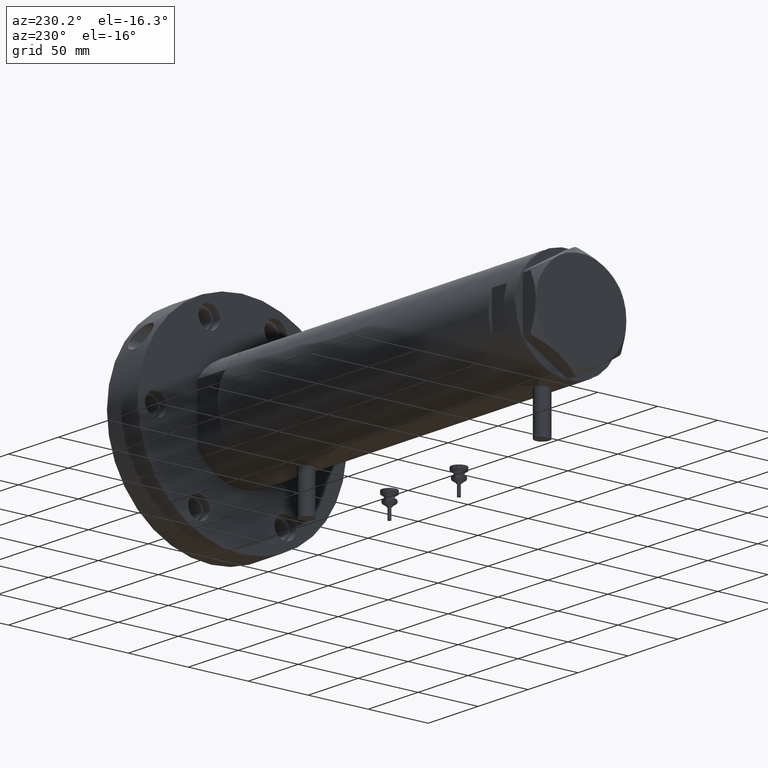
[diagram: clean part render]
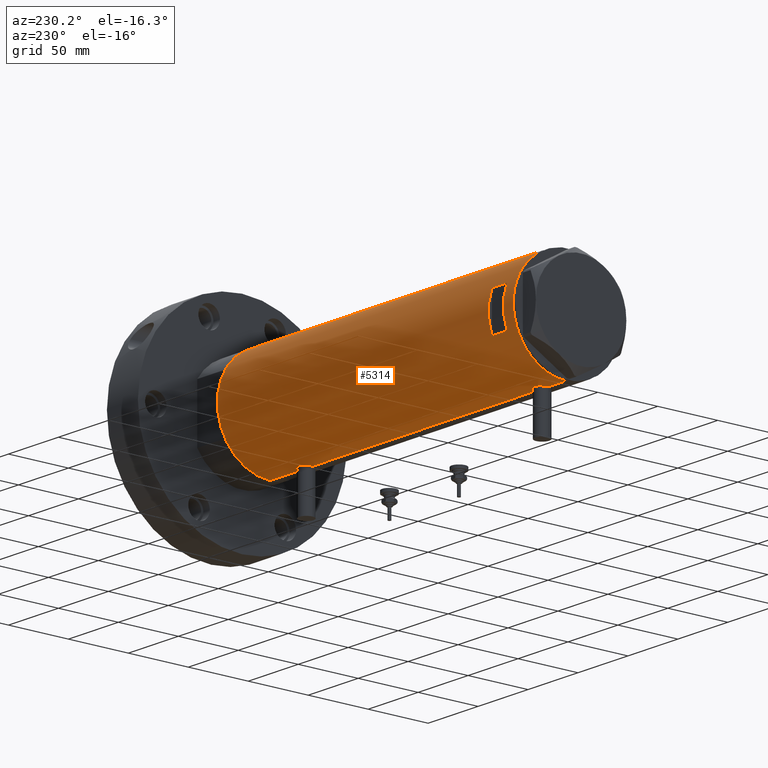
[diagram: same view with one face highlighted and labeled with its STEP entity id]
A machine part, auxiliary view. The second image highlights one B-rep face of the part: STEP entity #5314.
In plain terms, the highlighted cylindrical surface (partial cylindrical patch) has radius 44 mm, axis along (-1, -0, 0).
Its self-contained STEP definition (entity closure, byte-faithful):
#51 = DIRECTION ( 'NONE',  ( 1.000000000000000000, -8.881784197001252323E-16, 0.000000000000000000 ) ) ;
#54 = CARTESIAN_POINT ( 'NONE',  ( 44.00000000000000000, 0.000000000000000000, -148.1999999999999886 ) ) ;
#66 = CARTESIAN_POINT ( 'NONE',  ( -43.61859254253774054, 5.782454868881351295, -109.5021359910553542 ) ) ;
#117 = CARTESIAN_POINT ( 'NONE',  ( 42.92259096922159500, 9.678247830257124207, 128.5000599302879323 ) ) ;
#143 = CARTESIAN_POINT ( 'NONE',  ( 43.97062489912107708, 1.639461988184795826, -76.22985373334013559 ) ) ;
#148 = CARTESIAN_POINT ( 'NONE',  ( -43.97754480947187261, 1.419697478855583839, 130.2900327605207451 ) ) ;
#173 = CARTESIAN_POINT ( 'NONE',  ( 43.80640706382533978, 4.134078575915388853, -76.98867178437912173 ) ) ;
#179 = CARTESIAN_POINT ( 'NONE',  ( -43.66555354895123742, 5.415612800338316823, 127.3265635717755515 ) ) ;
#209 = CARTESIAN_POINT ( 'NONE',  ( 43.27871541412905287, 7.937063204555986573, -80.00825002753971660 ) ) ;
#214 = CARTESIAN_POINT ( 'NONE',  ( -43.62981559643957752, 5.696090409300651025, 121.6194863458547673 ) ) ;
#243 = EDGE_CURVE ( 'NONE', #2092, #1103, #5895, .T. ) ;
#248 = CARTESIAN_POINT ( 'NONE',  ( 43.17277162440355198, 8.493905080221260562, -91.38787035108497037 ) ) ;
#284 = ORIENTED_EDGE ( 'NONE', *, *, #2476, .F. ) ;
#422 = CARTESIAN_POINT ( 'NONE',  ( 44.00000000000000000, -1.726036355082439716E-15, 115.9000000000000199 ) ) ;
#464 = CARTESIAN_POINT ( 'NONE',  ( 43.50265731352003939, 6.601850423195601003, 118.3818083270105177 ) ) ;
#534 = CARTESIAN_POINT ( 'NONE',  ( -43.58362292239462477, 6.039157555656595733, -110.2773642155195688 ) ) ;
#577 = CARTESIAN_POINT ( 'NONE',  ( 42.84863276153905787, 9.999733523508361088, 125.2413009524922245 ) ) ;
#610 = CARTESIAN_POINT ( 'NONE',  ( -44.00000000000000711, 0.4135148353567996149, -105.6499999999999773 ) ) ;
#615 = VERTEX_POINT ( 'NONE', #643 ) ;
#617 = CARTESIAN_POINT ( 'NONE',  ( 43.35257020184193522, 7.523219862841646233, 132.4960255408413730 ) ) ;
#632 = LINE ( 'NONE', #54, #2154 ) ;
#643 = CARTESIAN_POINT ( 'NONE',  ( -44.00000000000000000, 5.388445916248353619E-15, 148.1999999999999886 ) ) ;
#644 = CARTESIAN_POINT ( 'NONE',  ( -43.64133398152736021, 5.607447751852152606, -114.6678604501243512 ) ) ;
#645 = FACE_BOUND ( 'NONE', #1215, .T. ) ;
#674 = ORIENTED_EDGE ( 'NONE', *, *, #5817, .F. ) ;
#684 = CARTESIAN_POINT ( 'NONE',  ( 43.68141895191831736, 5.292250119194742197, 134.3910495228520006 ) ) ;
#712 = CARTESIAN_POINT ( 'NONE',  ( 42.84863276153905076, 9.999733523508359312, -86.75869904750777550 ) ) ;
#719 = CARTESIAN_POINT ( 'NONE',  ( -43.55382423478828713, 6.250151562062088217, 123.7941047051266281 ) ) ;
#750 = CARTESIAN_POINT ( 'NONE',  ( 44.00000000000000000, -1.726036355082439716E-15, 115.9000000000000199 ) ) ;
#764 = CARTESIAN_POINT ( 'NONE',  ( -15.96871942267132027, 40.99999999999999289, 138.1999999999999886 ) ) ;
#790 = CARTESIAN_POINT ( 'NONE',  ( -43.99413512814552973, 0.8228129877960675964, 117.9909168567418050 ) ) ;
#800 = CARTESIAN_POINT ( 'NONE',  ( -44.00000000000000000, 5.388445916248353619E-15, -148.1999999999999886 ) ) ;
#828 = CARTESIAN_POINT ( 'NONE',  ( -43.71901936021024682, 4.969830049220625767, 120.3883236230112743 ) ) ;
#1009 = CARTESIAN_POINT ( 'NONE',  ( 0.000000000000000000, 0.000000000000000000, 123.1999999999999744 ) ) ;
#1103 = VERTEX_POINT ( 'NONE', #750 ) ;
#1113 = CARTESIAN_POINT ( 'NONE',  ( 43.27822890220284791, 7.945655169171514487, 119.7927461671070830 ) ) ;
#1136 = CARTESIAN_POINT ( 'NONE',  ( 44.00000000000000000, 0.000000000000000000, 148.1999999999999886 ) ) ;
#1142 = CARTESIAN_POINT ( 'NONE',  ( -43.59867737633045692, 5.931302618788633296, -113.9124949502988926 ) ) ;
#1147 = CARTESIAN_POINT ( 'NONE',  ( 43.07598348983508174, 8.971306953823004804, 121.4703057681281138 ) ) ;
#1159 = DIRECTION ( 'NONE',  ( -1.000000000000000000, -8.881784197001252323E-16, 0.000000000000000000 ) ) ;
#1162 = VECTOR ( 'NONE', #1863, 1000.000000000000000 ) ;
#1174 = EDGE_CURVE ( 'NONE', #4511, #3747, #7075, .T. ) ;
#1177 = CARTESIAN_POINT ( 'NONE',  ( -43.95549163632549750, 2.014511215452027937, -117.8305895570497768 ) ) ;
#1215 = EDGE_LOOP ( 'NONE', ( #3819, #7457, #7071, #1395 ) ) ;
#1219 = CARTESIAN_POINT ( 'NONE',  ( -43.91315028150560096, 2.769134003554746482, -117.5068261937540370 ) ) ;
#1227 = CARTESIAN_POINT ( 'NONE',  ( 43.71454618729809738, 5.012329428678965471, 134.5593697405831222 ) ) ;
#1243 = ORIENTED_EDGE ( 'NONE', *, *, #1898, .F. ) ;
#1244 = VERTEX_POINT ( 'NONE', #6782 ) ;
#1248 = CARTESIAN_POINT ( 'NONE',  ( 43.50382207688845426, 6.605942769308308371, -78.56395311161780626 ) ) ;
#1253 = CARTESIAN_POINT ( 'NONE',  ( -43.80646232387288563, 4.132500855894024383, -107.1935441459664275 ) ) ;
#1259 = CARTESIAN_POINT ( 'NONE',  ( 42.86370458161098185, 9.935807968041567406, 124.5909544957013253 ) ) ;
#1282 = CARTESIAN_POINT ( 'NONE',  ( 43.57805684119164624, 6.103282219787162788, -78.15183798352141764 ) ) ;
#1283 = ORIENTED_EDGE ( 'NONE', *, *, #243, .F. ) ;
#1294 = CARTESIAN_POINT ( 'NONE',  ( 43.50382207688847558, 6.605942769308297713, 133.4360468883822932 ) ) ;
#1367 = CARTESIAN_POINT ( 'NONE',  ( -43.83576802966639008, 3.813209221108460500, 119.2313450964529125 ) ) ;
#1393 = CARTESIAN_POINT ( 'NONE',  ( 42.99303682946561622, 9.360292926890510401, -89.63424220207205906 ) ) ;
#1395 = ORIENTED_EDGE ( 'NONE', *, *, #1174, .F. ) ;
#1428 = EDGE_CURVE ( 'NONE', #3971, #615, #4155, .T. ) ;
#1611 = CARTESIAN_POINT ( 'NONE',  ( 43.85884410404901246, 3.534688330930383593, 116.5398019124966424 ) ) ;
#1633 = CARTESIAN_POINT ( 'NONE',  ( 43.57657781376908446, 6.094873943596679666, -94.03474301119597101 ) ) ;
#1638 = CARTESIAN_POINT ( 'NONE',  ( -44.00000000000000000, 5.388445916248353619E-15, -148.1999999999999886 ) ) ;
#1672 = CARTESIAN_POINT ( 'NONE',  ( -43.57657963456318839, 6.089610171536606664, -110.4782146041918622 ) ) ;
#1710 = CARTESIAN_POINT ( 'NONE',  ( -43.55963022497231663, 6.210088036293396563, -111.0835383698257601 ) ) ;
#1720 = CARTESIAN_POINT ( 'NONE',  ( 43.07641822757289418, 8.969229373860580168, 130.3339623579017257 ) ) ;
#1731 = CARTESIAN_POINT ( 'NONE',  ( 15.96871942267132027, 40.99999999999999289, -148.1999999999999886 ) ) ;
#1747 = DIRECTION ( 'NONE',  ( 0.000000000000000000, 0.000000000000000000, 1.000000000000000000 ) ) ;
#1776 = CARTESIAN_POINT ( 'NONE',  ( 44.00000000000001421, 0.6630566900259825536, -96.09999999999998010 ) ) ;
#1781 = CARTESIAN_POINT ( 'NONE',  ( -43.95446647384543581, 2.010857111636599637, -105.9787577363606346 ) ) ;
#1787 = CARTESIAN_POINT ( 'NONE',  ( 42.96547725528407824, 9.488625330801086832, 129.1245034721107743 ) ) ;
#1814 = CARTESIAN_POINT ( 'NONE',  ( 43.39051256276903246, 7.301963662770312169, -79.25975531787059936 ) ) ;
#1828 = CARTESIAN_POINT ( 'NONE',  ( 42.99303682946561622, 9.360292926890506848, 122.3657577979279836 ) ) ;
#1850 = DIRECTION ( 'NONE',  ( 0.000000000000000000, 0.000000000000000000, 1.000000000000000000 ) ) ;
#1853 = CARTESIAN_POINT ( 'NONE',  ( 43.46520118248735542, 6.843279251446915623, -93.39898327212165441 ) ) ;
#1856 = EDGE_CURVE ( 'NONE', #6075, #4817, #2726, .T. ) ;
#1863 = DIRECTION ( 'NONE',  ( 0.000000000000000000, 0.000000000000000000, 1.000000000000000000 ) ) ;
#1881 = VERTEX_POINT ( 'NONE', #6323 ) ;
#1891 = CARTESIAN_POINT ( 'NONE',  ( -43.66575107734167460, 5.414026674167574882, 121.0706491196229848 ) ) ;
#1898 = EDGE_CURVE ( 'NONE', #4650, #4817, #6620, .T. ) ;
#1930 = CARTESIAN_POINT ( 'NONE',  ( -43.55973179376101001, 6.209370339246233605, 123.3793823294013379 ) ) ;
#1954 = VERTEX_POINT ( 'NONE', #4828 ) ;
#1967 = CARTESIAN_POINT ( 'NONE',  ( -43.67863969133946966, 5.309394106110044476, 127.5037929650255109 ) ) ;
#1969 = EDGE_CURVE ( 'NONE', #3971, #5163, #5275, .T. ) ;
#1998 = CARTESIAN_POINT ( 'NONE',  ( -43.58362292239463187, 6.039157555656599285, 125.8226357844804681 ) ) ;
#2020 = DIRECTION ( 'NONE',  ( 0.000000000000000000, 0.000000000000000000, 1.000000000000000000 ) ) ;
#2092 = VERTEX_POINT ( 'NONE', #5586 ) ;
#2125 = ORIENTED_EDGE ( 'NONE', *, *, #6472, .T. ) ;
#2135 = CARTESIAN_POINT ( 'NONE',  ( 0.000000000000000000, 0.000000000000000000, 148.1999999999999886 ) ) ;
#2144 = DIRECTION ( 'NONE',  ( -0.000000000000000000, -0.000000000000000000, 1.000000000000000000 ) ) ;
#2154 = VECTOR ( 'NONE', #4743, 1000.000000000000000 ) ;
#2182 = VERTEX_POINT ( 'NONE', #1136 ) ;
#2242 = CARTESIAN_POINT ( 'NONE',  ( -43.99413512814552263, 0.8228129877960659311, -118.1090831432582604 ) ) ;
#2247 = EDGE_CURVE ( 'NONE', #1881, #2092, #6364, .T. ) ;
#2275 = CARTESIAN_POINT ( 'NONE',  ( -43.66575107734168171, 5.414026674167576658, -115.0293508803769811 ) ) ;
#2285 = CARTESIAN_POINT ( 'NONE',  ( 43.17306590853067405, 8.492365194390501415, 131.1901253269345773 ) ) ;
#2310 = CARTESIAN_POINT ( 'NONE',  ( 43.92466059386730137, 2.593004216484783964, -95.76356669671355348 ) ) ;
#2316 = CARTESIAN_POINT ( 'NONE',  ( -43.80687348212602217, 4.128385987736833407, -116.6104874331096255 ) ) ;
#2317 = FACE_OUTER_BOUND ( 'NONE', #5233, .T. ) ;
#2325 = CARTESIAN_POINT ( 'NONE',  ( 42.96879251999278893, 9.470609476412109373, 122.6727710005894352 ) ) ;
#2355 = CARTESIAN_POINT ( 'NONE',  ( 43.88561577393363677, 3.228056721358719017, 135.3872166572783158 ) ) ;
#2367 = CARTESIAN_POINT ( 'NONE',  ( 0.000000000000000000, 0.000000000000000000, 138.1999999999999886 ) ) ;
#2380 = CARTESIAN_POINT ( 'NONE',  ( 43.71659050864931828, 5.015880325000607876, -94.77566825963822339 ) ) ;
#2387 = CARTESIAN_POINT ( 'NONE',  ( -43.66555354895124452, 5.415612800338318600, -108.7734364282244712 ) ) ;
#2422 = CARTESIAN_POINT ( 'NONE',  ( 43.99635668041006653, 0.6544833911834552209, -76.11599291522472299 ) ) ;
#2428 = CARTESIAN_POINT ( 'NONE',  ( -43.74833112883975872, 4.708208586952010499, 128.3305038350887060 ) ) ;
#2463 = CARTESIAN_POINT ( 'NONE',  ( -43.59867737633044982, 5.931302618788632408, 122.1875050497011301 ) ) ;
#2476 = EDGE_CURVE ( 'NONE', #7456, #1881, #6840, .T. ) ;
#2491 = CARTESIAN_POINT ( 'NONE',  ( 43.35294442506072699, 7.532526048221049209, -92.70935414491108872 ) ) ;
#2497 = CARTESIAN_POINT ( 'NONE',  ( -43.64122538274736485, 5.608286354294323317, 126.9661138696334177 ) ) ;
#2525 = CARTESIAN_POINT ( 'NONE',  ( 43.04652664061920575, 9.111152824375425396, -81.96541990785412679 ) ) ;
#2562 = CARTESIAN_POINT ( 'NONE',  ( 42.86396777580259254, 9.934664719553399692, -84.78423800973480695 ) ) ;
#2568 = CARTESIAN_POINT ( 'NONE',  ( -43.88883895882798925, 3.130924084324100409, 118.7868754425185216 ) ) ;
#2703 = EDGE_CURVE ( 'NONE', #1244, #2182, #632, .T. ) ;
#2726 = LINE ( 'NONE', #1638, #2993 ) ;
#2734 = VECTOR ( 'NONE', #1850, 1000.000000000000000 ) ;
#2780 = CARTESIAN_POINT ( 'NONE',  ( 43.46520118248736253, 6.843279251446918288, 118.6010167278784024 ) ) ;
#2791 = ORIENTED_EDGE ( 'NONE', *, *, #1856, .T. ) ;
#2813 = CARTESIAN_POINT ( 'NONE',  ( -43.55386785759471024, 6.249847571481740971, -111.4894505238204374 ) ) ;
#2848 = CARTESIAN_POINT ( 'NONE',  ( -43.91413175532567692, 2.773555030353453965, -106.2841576163325925 ) ) ;
#2854 = CARTESIAN_POINT ( 'NONE',  ( 43.24261242176996234, 8.130827601038818742, 131.7305518685417383 ) ) ;
#2901 = AXIS2_PLACEMENT_3D ( 'NONE', #2135, #2020, #5526 ) ;
#2926 = CARTESIAN_POINT ( 'NONE',  ( -43.88883895882799635, 3.130924084324101297, -117.3131245574814727 ) ) ;
#2954 = CARTESIAN_POINT ( 'NONE',  ( 43.85884410404901956, 3.534688330930385369, -95.46019808750335756 ) ) ;
#2965 = CARTESIAN_POINT ( 'NONE',  ( 43.17277162440354488, 8.493905080221260562, 120.6121296489150723 ) ) ;
#2989 = CARTESIAN_POINT ( 'NONE',  ( 42.96879251999280314, 9.470609476412112926, -89.32722899941057904 ) ) ;
#2993 = VECTOR ( 'NONE', #5102, 1000.000000000000000 ) ;
#2994 = CARTESIAN_POINT ( 'NONE',  ( -43.80687348212601506, 4.128385987736831630, 119.4895125668903830 ) ) ;
#3009 = DIRECTION ( 'NONE',  ( -0.000000000000000000, -0.000000000000000000, -1.000000000000000000 ) ) ;
#3027 = CARTESIAN_POINT ( 'NONE',  ( 42.92259096922160921, 9.678247830257127760, -83.49994006971209615 ) ) ;
#3034 = CARTESIAN_POINT ( 'NONE',  ( -43.80646232387288563, 4.132500855894035929, 128.9064558540335668 ) ) ;
#3071 = CARTESIAN_POINT ( 'NONE',  ( -43.83593455218809964, 3.811409182021288533, 129.1701492770350228 ) ) ;
#3106 = CARTESIAN_POINT ( 'NONE',  ( -44.00000000000000000, 5.388445781982983516E-15, 117.9500000000000028 ) ) ;
#3146 = CARTESIAN_POINT ( 'NONE',  ( -44.00000000000000000, 3.205170455528113082E-15, 130.4500000000000171 ) ) ;
#3262 = EDGE_CURVE ( 'NONE', #4468, #1954, #6483, .T. ) ;
#3270 = ORIENTED_EDGE ( 'NONE', *, *, #2247, .F. ) ;
#3291 = ORIENTED_EDGE ( 'NONE', *, *, #6242, .T. ) ;
#3352 = CARTESIAN_POINT ( 'NONE',  ( 43.61291203895921598, 5.829986172017925128, 117.7687128921317452 ) ) ;
#3394 = CARTESIAN_POINT ( 'NONE',  ( 43.35294442506074120, 7.532526048221051873, 119.2906458550888829 ) ) ;
#3410 = ORIENTED_EDGE ( 'NONE', *, *, #2703, .F. ) ;
#3457 = DIRECTION ( 'NONE',  ( 0.000000000000000000, 0.000000000000000000, 1.000000000000000000 ) ) ;
#3463 = CARTESIAN_POINT ( 'NONE',  ( 43.04652664061920575, 9.111152824375430725, 130.0345800921458874 ) ) ;
#3488 = VECTOR ( 'NONE', #4668, 1000.000000000000000 ) ;
#3493 = CARTESIAN_POINT ( 'NONE',  ( -43.88968326835893663, 3.132363423941621150, -106.4762076764352088 ) ) ;
#3532 = CARTESIAN_POINT ( 'NONE',  ( -43.99999999999997158, 0.4081702738789203533, -118.1499999999999631 ) ) ;
#3540 = CARTESIAN_POINT ( 'NONE',  ( 44.00000000000000000, -3.917205576288906830E-21, 135.9000000000000341 ) ) ;
#3560 = CARTESIAN_POINT ( 'NONE',  ( 43.92756755766650656, 2.604528169608118393, -76.42286588097658750 ) ) ;
#3564 = CARTESIAN_POINT ( 'NONE',  ( -43.71901936021023971, 4.969830049220626655, -115.7116763769886916 ) ) ;
#3594 = CARTESIAN_POINT ( 'NONE',  ( -44.00000000000000000, 3.205170455528113082E-15, 130.4500000000000171 ) ) ;
#3596 = CARTESIAN_POINT ( 'NONE',  ( 43.77712723341632284, 4.432620652875495892, -77.13004990240027325 ) ) ;
#3600 = CARTESIAN_POINT ( 'NONE',  ( -43.71938389712227035, 4.966728892888069069, 128.0161445234087125 ) ) ;
#3606 = CARTESIAN_POINT ( 'NONE',  ( 42.92624534982631701, 9.661626915142806027, 123.2999199585529482 ) ) ;
#3609 = CIRCLE ( 'NONE', #6672, 44.00000000000000000 ) ;
#3615 = EDGE_CURVE ( 'NONE', #1103, #1244, #3775, .T. ) ;
#3621 = DIRECTION ( 'NONE',  ( -0.000000000000000000, -0.000000000000000000, -1.000000000000000000 ) ) ;
#3643 = CARTESIAN_POINT ( 'NONE',  ( -43.97181775256599678, 1.624866278047412349, 118.1510708161490442 ) ) ;
#3662 = CARTESIAN_POINT ( 'NONE',  ( -15.96871942267132027, 40.99999999999999289, 123.1999999999999886 ) ) ;
#3680 = CARTESIAN_POINT ( 'NONE',  ( -43.87596296923809547, 3.305851531861729420, 118.8919641412373522 ) ) ;
#3705 = CARTESIAN_POINT ( 'NONE',  ( 43.35257020184193522, 7.523219862841656003, -79.50397445915866967 ) ) ;
#3711 = CARTESIAN_POINT ( 'NONE',  ( -43.99417607942194763, 0.8200150578638757404, 130.4093667251674162 ) ) ;
#3717 = CARTESIAN_POINT ( 'NONE',  ( 44.00000000000000000, 0.000000000000000000, -148.1999999999999886 ) ) ;
#3747 = VERTEX_POINT ( 'NONE', #764 ) ;
#3775 = B_SPLINE_CURVE_WITH_KNOTS ( 'NONE', 3,
 ( #422, #7404, #4002, #3961, #4500, #6825, #1611, #6331, #3926, #3352, #5676, #464, #2780, #3394, #1113, #2965, #5938, #1147, #4154, #1828, #2325, #3606, #4654, #1259, #577, #4768, #6366, #117, #1787, #3463, #1720, #4072, #2285, #2854, #6398, #617, #5897, #1294, #5185, #684, #1227, #7524, #6941, #2355, #7090, #5792, #5297, #6476, #6975, #3540 ),
 .UNSPECIFIED., .F., .F.,
 ( 4, 2, 2, 2, 2, 2, 2, 2, 2, 2, 2, 2, 2, 2, 2, 2, 2, 2, 2, 2, 2, 2, 2, 2, 4 ),
 ( 1.676565531868734773E-18, 0.001960456513248841175, 0.002940684769873264798, 0.003920913026497689288, 0.005881369539746519187, 0.006861597796370934137, 0.007841826052995349086, 0.009802282566244210210, 0.01078251082286863817, 0.01176273907949306613, 0.01274296733611749582, 0.01372319559274192378, 0.01568365210599073981, 0.01764410861923955062, 0.01960456513248837185, 0.02058479338911281889, 0.02156502164573726593, 0.02254524990236171644, 0.02352547815898616002, 0.02548593467223511655, 0.02646616292885961563, 0.02744639118548411472, 0.02940684769873311635, 0.03038707595535761891, 0.03136730421198213187 ),
 .UNSPECIFIED. ) ;
#3819 = ORIENTED_EDGE ( 'NONE', *, *, #4314, .F. ) ;
#3886 = CIRCLE ( 'NONE', #6571, 44.00000000000000000 ) ;
#3926 = CARTESIAN_POINT ( 'NONE',  ( 43.71659050864932539, 5.015880325000607876, 117.2243317403618477 ) ) ;
#3945 = CARTESIAN_POINT ( 'NONE',  ( 43.98503110884232115, 1.314607393679875669, -96.03470984345551642 ) ) ;
#3961 = CARTESIAN_POINT ( 'NONE',  ( 43.94229162222109863, 2.275476993733910547, 116.1568553577769620 ) ) ;
#3971 = VERTEX_POINT ( 'NONE', #3594 ) ;
#3992 = CARTESIAN_POINT ( 'NONE',  ( -43.64122538274737195, 5.608286354294323317, -109.1338861303666192 ) ) ;
#4002 = CARTESIAN_POINT ( 'NONE',  ( 43.98503110884230694, 1.314607393679875225, 115.9652901565444694 ) ) ;
#4031 = CARTESIAN_POINT ( 'NONE',  ( -43.92459115390705193, 2.581892149020998950, -117.5954582707334595 ) ) ;
#4037 = CARTESIAN_POINT ( 'NONE',  ( -43.97754480947185129, 1.419697478855583617, -105.8099672394792066 ) ) ;
#4067 = DIRECTION ( 'NONE',  ( 1.000000000000000000, 0.000000000000000000, 0.000000000000000000 ) ) ;
#4072 = CARTESIAN_POINT ( 'NONE',  ( 43.13962074468733476, 8.660138848900681197, 130.9108974116393540 ) ) ;
#4099 = CARTESIAN_POINT ( 'NONE',  ( 43.88297407487990398, 3.222431612395379119, -95.57228202029342867 ) ) ;
#4106 = CARTESIAN_POINT ( 'NONE',  ( -43.58221825186232223, 6.049526113783018744, -113.5226297081795650 ) ) ;
#4110 = VECTOR ( 'NONE', #3009, 1000.000000000000000 ) ;
#4154 = CARTESIAN_POINT ( 'NONE',  ( 43.04663170950396278, 9.110642017076083121, 121.7645249780961052 ) ) ;
#4155 = LINE ( 'NONE', #5298, #6281 ) ;
#4176 = CARTESIAN_POINT ( 'NONE',  ( 43.71454618729809027, 5.012329428678959253, -77.44063025941690626 ) ) ;
#4219 = CARTESIAN_POINT ( 'NONE',  ( -43.74805001749256661, 4.711035428619386956, 120.0722393587420669 ) ) ;
#4256 = CARTESIAN_POINT ( 'NONE',  ( 43.88561577393361546, 3.228056721358708803, -76.61278334272179791 ) ) ;
#4260 = CARTESIAN_POINT ( 'NONE',  ( -43.58221825186232223, 6.049526113783017855, 122.5773702918204293 ) ) ;
#4290 = CARTESIAN_POINT ( 'NONE',  ( 43.50265731352003939, 6.601850423195591233, -93.61819167298956756 ) ) ;
#4314 = EDGE_CURVE ( 'NONE', #1954, #4511, #3609, .T. ) ;
#4325 = CARTESIAN_POINT ( 'NONE',  ( -44.00000000000001421, 0.4135148353567998369, 130.4500000000000171 ) ) ;
#4444 = ORIENTED_EDGE ( 'NONE', *, *, #1969, .F. ) ;
#4468 = VERTEX_POINT ( 'NONE', #6409 ) ;
#4500 = CARTESIAN_POINT ( 'NONE',  ( 43.92466059386730848, 2.593004216484782631, 116.2364333032864891 ) ) ;
#4511 = VERTEX_POINT ( 'NONE', #3662 ) ;
#4566 = CARTESIAN_POINT ( 'NONE',  ( -43.74805001749254529, 4.711035428619386956, -116.0277606412579985 ) ) ;
#4608 = CARTESIAN_POINT ( 'NONE',  ( -43.67867890111967455, 5.309046579850785541, -115.2042277907602141 ) ) ;
#4647 = CARTESIAN_POINT ( 'NONE',  ( 0.000000000000000000, 0.000000000000000000, -148.1999999999999886 ) ) ;
#4650 = VERTEX_POINT ( 'NONE', #7215 ) ;
#4654 = CARTESIAN_POINT ( 'NONE',  ( 42.90786968859020334, 9.742642423712167599, 123.6219770345287543 ) ) ;
#4668 = DIRECTION ( 'NONE',  ( 0.000000000000000000, 0.000000000000000000, 1.000000000000000000 ) ) ;
#4712 = CARTESIAN_POINT ( 'NONE',  ( 43.61291203895921598, 5.829986172017927792, -94.23128710786834006 ) ) ;
#4719 = CARTESIAN_POINT ( 'NONE',  ( -43.55973179376100290, 6.209370339246232717, -112.7206176705986849 ) ) ;
#4743 = DIRECTION ( 'NONE',  ( 0.000000000000000000, 0.000000000000000000, 1.000000000000000000 ) ) ;
#4754 = CARTESIAN_POINT ( 'NONE',  ( 43.04663170950394857, 9.110642017076081345, -90.23547502190392322 ) ) ;
#4768 = CARTESIAN_POINT ( 'NONE',  ( 42.84850876528984287, 10.00026482975808406, 126.5505830547042621 ) ) ;
#4788 = CARTESIAN_POINT ( 'NONE',  ( 42.96547725528408535, 9.488625330801085056, -82.87549652788929677 ) ) ;
#4793 = CARTESIAN_POINT ( 'NONE',  ( -43.64133398152736021, 5.607447751852150830, 121.4321395498756573 ) ) ;
#4817 = VERTEX_POINT ( 'NONE', #5640 ) ;
#4823 = CARTESIAN_POINT ( 'NONE',  ( 43.27822890220284791, 7.945655169171514487, -92.20725383289293120 ) ) ;
#4828 = CARTESIAN_POINT ( 'NONE',  ( 15.96871942267132027, 40.99999999999999289, 123.1999999999999886 ) ) ;
#4862 = CARTESIAN_POINT ( 'NONE',  ( 43.17306590853065984, 8.492365194390513849, -80.80987467306545113 ) ) ;
#4900 = CARTESIAN_POINT ( 'NONE',  ( -44.00000000000000711, 0.4081702738789175222, 117.9500000000000313 ) ) ;
#4982 = CIRCLE ( 'NONE', #7433, 44.00000000000000000 ) ;
#5102 = DIRECTION ( 'NONE',  ( 0.000000000000000000, 0.000000000000000000, 1.000000000000000000 ) ) ;
#5163 = VERTEX_POINT ( 'NONE', #7481 ) ;
#5176 = CARTESIAN_POINT ( 'NONE',  ( -43.62981559643959883, 5.696090409300652802, -114.4805136541452271 ) ) ;
#5185 = CARTESIAN_POINT ( 'NONE',  ( 43.57805684119163914, 6.103282219787171670, 133.8481620164786534 ) ) ;
#5217 = CARTESIAN_POINT ( 'NONE',  ( -44.00000000000000000, 5.388445781982983516E-15, -118.1500000000000057 ) ) ;
#5233 = EDGE_LOOP ( 'NONE', ( #2125, #2791, #1243, #3291, #4444, #6514, #674, #3410, #6117, #1283, #3270, #284 ) ) ;
#5255 = CARTESIAN_POINT ( 'NONE',  ( -43.97181775256600389, 1.624866278047415680, -117.9489291838509502 ) ) ;
#5275 = B_SPLINE_CURVE_WITH_KNOTS ( 'NONE', 3,
 ( #3146, #4325, #3711, #148, #6610, #5401, #6645, #5437, #5971, #3071, #3034, #2428, #3600, #1967, #179, #2497, #7156, #5888, #1998, #7117, #5473, #5929, #719, #1930, #4260, #2463, #214, #4793, #1891, #6576, #828, #4219, #2994, #1367, #3680, #2568, #6538, #5327, #6003, #3643, #790, #4900, #3106 ),
 .UNSPECIFIED., .F., .F.,
 ( 4, 2, 2, 2, 2, 2, 2, 2, 1, 2, 2, 2, 2, 2, 2, 2, 2, 2, 2, 2, 2, 4 ),
 ( 3.114226524098576417E-18, 0.001222818171749707637, 0.001834227257624559829, 0.002445636343499412238, 0.003668454515249116622, 0.004891272686998821874, 0.006114090858748525391, 0.006725499944623378884, 0.007336909030498230642, 0.007948318116373082401, 0.008559727202247935027, 0.009782545373997636809, 0.01100536354574729869, 0.01222818171749695884, 0.01283959080337180973, 0.01345099988924666062, 0.01467381806099635894, 0.01589663623274606072, 0.01650804531862090987, 0.01711945440449575903, 0.01834227257624546428, 0.01956509074799516260 ),
 .UNSPECIFIED. ) ;
#5287 = CARTESIAN_POINT ( 'NONE',  ( 43.77939001959703802, 4.442287752090381403, -95.08306177559161654 ) ) ;
#5290 = CARTESIAN_POINT ( 'NONE',  ( -43.94507179847653333, 2.206027755801677870, -106.0486847771820322 ) ) ;
#5297 = CARTESIAN_POINT ( 'NONE',  ( 43.98169492814102455, 1.310824514239774530, 135.8191978038068441 ) ) ;
#5298 = CARTESIAN_POINT ( 'NONE',  ( -44.00000000000000000, 5.388445916248353619E-15, -148.1999999999999886 ) ) ;
#5301 = CARTESIAN_POINT ( 'NONE',  ( -44.00000000000000000, 5.388445916248353619E-15, -148.1999999999999886 ) ) ;
#5314 = ADVANCED_FACE ( 'NONE', ( #645, #2317 ), #6970, .T. ) ;
#5322 = CARTESIAN_POINT ( 'NONE',  ( 42.90786968859020334, 9.742642423712169375, -88.37802296547127412 ) ) ;
#5327 = CARTESIAN_POINT ( 'NONE',  ( -43.92459115390705904, 2.581892149020998506, 118.5045417292665491 ) ) ;
#5377 = CARTESIAN_POINT ( 'NONE',  ( 44.00000000000000000, 0.000000000000000000, -148.1999999999999886 ) ) ;
#5396 = CARTESIAN_POINT ( 'NONE',  ( 43.24261242176995523, 8.130827601038827623, -80.26944813145831858 ) ) ;
#5401 = CARTESIAN_POINT ( 'NONE',  ( -43.95446647384545003, 2.010857111636596084, 130.1212422636393455 ) ) ;
#5430 = CARTESIAN_POINT ( 'NONE',  ( 43.07598348983507464, 8.971306953823010133, -90.52969423187184361 ) ) ;
#5437 = CARTESIAN_POINT ( 'NONE',  ( -43.91413175532566981, 2.773555030353461515, 129.8158423836674729 ) ) ;
#5469 = CARTESIAN_POINT ( 'NONE',  ( 43.07641822757289418, 8.969229373860567733, -81.66603764209828853 ) ) ;
#5473 = CARTESIAN_POINT ( 'NONE',  ( -43.55963022497230952, 6.210088036293396563, 125.0164616301742484 ) ) ;
#5526 = DIRECTION ( 'NONE',  ( 1.000000000000000000, 0.000000000000000000, 0.000000000000000000 ) ) ;
#5586 = CARTESIAN_POINT ( 'NONE',  ( 44.00000000000000000, -3.917104602093038540E-21, -76.10000000000000853 ) ) ;
#5640 = CARTESIAN_POINT ( 'NONE',  ( -44.00000000000000000, 5.388445781982983516E-15, -118.1500000000000057 ) ) ;
#5676 = CARTESIAN_POINT ( 'NONE',  ( 43.57657781376909156, 6.094873943596689436, 117.9652569888040858 ) ) ;
#5750 = CARTESIAN_POINT ( 'NONE',  ( -43.67863969133946966, 5.309394106110037370, -108.5962070349745403 ) ) ;
#5785 = CARTESIAN_POINT ( 'NONE',  ( -44.00000000000000000, 4.742435893011557518E-16, -105.6499999999999915 ) ) ;
#5792 = CARTESIAN_POINT ( 'NONE',  ( 43.97062489912107708, 1.639461988184804486, 135.7701462666599070 ) ) ;
#5817 = EDGE_CURVE ( 'NONE', #2182, #615, #6186, .T. ) ;
#5823 = CARTESIAN_POINT ( 'NONE',  ( -43.83593455218809254, 3.811409182021277431, -106.9298507229649857 ) ) ;
#5845 = CARTESIAN_POINT ( 'NONE',  ( 44.00000000000000000, 0.000000000000000000, -148.1999999999999886 ) ) ;
#5885 = CARTESIAN_POINT ( 'NONE',  ( 42.86370458161097474, 9.935807968041563853, -87.40904550429864628 ) ) ;
#5888 = CARTESIAN_POINT ( 'NONE',  ( -43.59995593514495482, 5.920088975424567579, 126.2141790869178379 ) ) ;
#5895 = LINE ( 'NONE', #3717, #1162 ) ;
#5897 = CARTESIAN_POINT ( 'NONE',  ( 43.39051256276903956, 7.301963662770305064, 132.7402446821294575 ) ) ;
#5923 = CARTESIAN_POINT ( 'NONE',  ( 43.98169492814104586, 1.310824514239765426, -76.18080219619319848 ) ) ;
#5929 = CARTESIAN_POINT ( 'NONE',  ( -43.55386785759471735, 6.249847571481741859, 124.6105494761795569 ) ) ;
#5938 = CARTESIAN_POINT ( 'NONE',  ( 43.13897484505559277, 8.663345277311664816, 120.8947039993948920 ) ) ;
#5965 = CARTESIAN_POINT ( 'NONE',  ( 42.92624534982630280, 9.661626915142804251, -88.70008004144708025 ) ) ;
#5971 = CARTESIAN_POINT ( 'NONE',  ( -43.88968326835894374, 3.132363423941633140, 129.6237923235648282 ) ) ;
#6003 = CARTESIAN_POINT ( 'NONE',  ( -43.95549163632550460, 2.014511215452026160, 118.2694104429502460 ) ) ;
#6075 = VERTEX_POINT ( 'NONE', #5301 ) ;
#6117 = ORIENTED_EDGE ( 'NONE', *, *, #3615, .F. ) ;
#6186 = CIRCLE ( 'NONE', #2901, 44.00000000000000000 ) ;
#6242 = EDGE_CURVE ( 'NONE', #4650, #5163, #7239, .T. ) ;
#6281 = VECTOR ( 'NONE', #6942, 1000.000000000000000 ) ;
#6323 = CARTESIAN_POINT ( 'NONE',  ( 44.00000000000000000, -2.552687571866728611E-15, -96.10000000000000853 ) ) ;
#6331 = CARTESIAN_POINT ( 'NONE',  ( 43.77939001959704513, 4.442287752090381403, 116.9169382244084119 ) ) ;
#6364 = B_SPLINE_CURVE_WITH_KNOTS ( 'NONE', 3,
 ( #7550, #1776, #3945, #6999, #2310, #4099, #2954, #5287, #2380, #4712, #1633, #4290, #1853, #2491, #4823, #248, #6494, #5430, #4754, #1393, #2989, #5965, #5322, #5885, #712, #6460, #2562, #3027, #4788, #2525, #5469, #7040, #4862, #5396, #209, #3705, #1814, #1248, #1282, #7191, #4176, #3596, #173, #4256, #3560, #143, #5923, #2422, #7150, #6605 ),
 .UNSPECIFIED., .F., .F.,
 ( 4, 2, 2, 2, 2, 2, 2, 2, 2, 2, 2, 2, 2, 2, 2, 2, 2, 2, 2, 2, 2, 2, 2, 2, 4 ),
 ( 2.479523669370822448E-18, 0.001960456513248891482, 0.002940684769873340258, 0.003920913026497789035, 0.005881369539746669241, 0.006861597796371108476, 0.007841826052995546845, 0.009802282566244456541, 0.01078251082286890879, 0.01176273907949335930, 0.01274296733611781154, 0.01372319559274226206, 0.01568365210599112838, 0.01764410861923999124, 0.01960456513248885757, 0.02058479338911329073, 0.02156502164573771696, 0.02254524990236214665, 0.02352547815898657982, 0.02548593467223546696, 0.02646616292885991054, 0.02744639118548435758, 0.02940684769873324472, 0.03038707595535769176, 0.03136730421198213881 ),
 .UNSPECIFIED. ) ;
#6366 = CARTESIAN_POINT ( 'NONE',  ( 42.86396777580259965, 9.934664719553397916, 127.2157619902652357 ) ) ;
#6394 = DIRECTION ( 'NONE',  ( 1.000000000000000000, 0.000000000000000000, 0.000000000000000000 ) ) ;
#6398 = CARTESIAN_POINT ( 'NONE',  ( 43.27871541412905287, 7.937063204555979468, 131.9917499724603545 ) ) ;
#6409 = CARTESIAN_POINT ( 'NONE',  ( 15.96871942267132027, 40.99999999999999289, 138.1999999999999886 ) ) ;
#6429 = CARTESIAN_POINT ( 'NONE',  ( -43.71938389712227746, 4.966728892888062852, -108.0838554765912960 ) ) ;
#6433 = CARTESIAN_POINT ( 'NONE',  ( 0.000000000000000000, 0.000000000000000000, -148.1999999999999886 ) ) ;
#6460 = CARTESIAN_POINT ( 'NONE',  ( 42.84850876528984287, 10.00026482975807873, -85.44941694529576637 ) ) ;
#6472 = EDGE_CURVE ( 'NONE', #7456, #6075, #4982, .T. ) ;
#6476 = CARTESIAN_POINT ( 'NONE',  ( 43.99635668041006653, 0.6544833911834624374, 135.8840070847753623 ) ) ;
#6483 = LINE ( 'NONE', #1731, #4110 ) ;
#6494 = CARTESIAN_POINT ( 'NONE',  ( 43.13897484505559987, 8.663345277311670145, -91.10529600060513644 ) ) ;
#6514 = ORIENTED_EDGE ( 'NONE', *, *, #1428, .T. ) ;
#6538 = CARTESIAN_POINT ( 'NONE',  ( -43.91315028150558675, 2.769134003554747370, 118.5931738062459573 ) ) ;
#6571 = AXIS2_PLACEMENT_3D ( 'NONE', #2367, #3621, #51 ) ;
#6576 = CARTESIAN_POINT ( 'NONE',  ( -43.67867890111968165, 5.309046579850784653, 120.8957722092397660 ) ) ;
#6605 = CARTESIAN_POINT ( 'NONE',  ( 44.00000000000000000, -3.917104602093038540E-21, -76.10000000000000853 ) ) ;
#6610 = CARTESIAN_POINT ( 'NONE',  ( -43.97068415157984589, 1.617901284326944689, 130.2404512830004251 ) ) ;
#6620 = B_SPLINE_CURVE_WITH_KNOTS ( 'NONE', 3,
 ( #5785, #610, #7480, #4037, #6891, #1781, #5290, #2848, #3493, #5823, #1253, #7516, #6429, #5750, #2387, #3992, #66, #6969, #534, #1672, #1710, #2813, #7004, #4719, #4106, #1142, #5176, #644, #2275, #4608, #3564, #4566, #2316, #7046, #6933, #2926, #1219, #4031, #1177, #5255, #2242, #3532, #5217 ),
 .UNSPECIFIED., .F., .F.,
 ( 4, 2, 2, 2, 2, 2, 2, 2, 1, 2, 2, 2, 2, 2, 2, 2, 2, 2, 2, 2, 2, 4 ),
 ( 4.607873388256435088E-19, 0.001222818171749670340, 0.001834227257624505619, 0.002445636343499341114, 0.003668454515249027284, 0.004891272686998713454, 0.006114090858748398756, 0.006725499944623259188, 0.007336909030498119620, 0.007948318116372978318, 0.008559727202247837882, 0.009782545373997518848, 0.01100536354574719981, 0.01222818171749687904, 0.01283959080337173861, 0.01345099988924659644, 0.01467381806099631383, 0.01589663623274603296, 0.01650804531862088906, 0.01711945440449574862, 0.01834227257624546428, 0.01956509074799517994 ),
 .UNSPECIFIED. ) ;
#6645 = CARTESIAN_POINT ( 'NONE',  ( -43.94507179847653333, 2.206027755801685863, 130.0513152228180047 ) ) ;
#6672 = AXIS2_PLACEMENT_3D ( 'NONE', #1009, #2144, #1159 ) ;
#6782 = CARTESIAN_POINT ( 'NONE',  ( 44.00000000000000000, -3.917205576288906830E-21, 135.9000000000000341 ) ) ;
#6790 = AXIS2_PLACEMENT_3D ( 'NONE', #4647, #1747, #4067 ) ;
#6825 = CARTESIAN_POINT ( 'NONE',  ( 43.88297407487989688, 3.222431612395376455, 116.4277179797065997 ) ) ;
#6840 = LINE ( 'NONE', #5845, #3488 ) ;
#6891 = CARTESIAN_POINT ( 'NONE',  ( -43.97068415157983878, 1.617901284326946909, -105.8595487169995266 ) ) ;
#6933 = CARTESIAN_POINT ( 'NONE',  ( -43.87596296923810968, 3.305851531861728976, -117.2080358587625994 ) ) ;
#6941 = CARTESIAN_POINT ( 'NONE',  ( 43.80640706382533267, 4.134078575915394183, 135.0113282156208641 ) ) ;
#6942 = DIRECTION ( 'NONE',  ( 0.000000000000000000, 0.000000000000000000, 1.000000000000000000 ) ) ;
#6969 = CARTESIAN_POINT ( 'NONE',  ( -43.59995593514495482, 5.920088975424566691, -109.8858209130821848 ) ) ;
#6970 = CYLINDRICAL_SURFACE ( 'NONE', #6790, 44.00000000000000000 ) ;
#6974 = EDGE_CURVE ( 'NONE', #3747, #4468, #3886, .T. ) ;
#6975 = CARTESIAN_POINT ( 'NONE',  ( 44.00000000000001421, 0.3269372501759423844, 135.9000000000000625 ) ) ;
#6999 = CARTESIAN_POINT ( 'NONE',  ( 43.94229162222109863, 2.275476993733910991, -95.84314464222305219 ) ) ;
#7004 = CARTESIAN_POINT ( 'NONE',  ( -43.55382423478827292, 6.250151562062086441, -112.3058952948734088 ) ) ;
#7036 = CARTESIAN_POINT ( 'NONE',  ( -15.96871942267132027, 40.99999999999999289, -148.1999999999999886 ) ) ;
#7040 = CARTESIAN_POINT ( 'NONE',  ( 43.13962074468734897, 8.660138848900672315, -81.08910258836064600 ) ) ;
#7046 = CARTESIAN_POINT ( 'NONE',  ( -43.83576802966640429, 3.813209221108459168, -116.8686549035471103 ) ) ;
#7071 = ORIENTED_EDGE ( 'NONE', *, *, #6974, .F. ) ;
#7075 = LINE ( 'NONE', #7036, #2734 ) ;
#7090 = CARTESIAN_POINT ( 'NONE',  ( 43.92756755766648524, 2.604528169608123722, 135.5771341190234409 ) ) ;
#7117 = CARTESIAN_POINT ( 'NONE',  ( -43.57657963456318839, 6.089610171536609329, 125.6217853958080894 ) ) ;
#7150 = CARTESIAN_POINT ( 'NONE',  ( 44.00000000000002132, 0.3269372501759363336, -76.10000000000002274 ) ) ;
#7156 = CARTESIAN_POINT ( 'NONE',  ( -43.61859207403892214, 5.782454990768616021, 126.5978640851534180 ) ) ;
#7170 = VECTOR ( 'NONE', #7283, 1000.000000000000000 ) ;
#7191 = CARTESIAN_POINT ( 'NONE',  ( 43.68141895191830315, 5.292250119194731539, -77.60895047714808470 ) ) ;
#7215 = CARTESIAN_POINT ( 'NONE',  ( -44.00000000000000000, 4.742435893011557518E-16, -105.6499999999999915 ) ) ;
#7239 = LINE ( 'NONE', #800, #7170 ) ;
#7283 = DIRECTION ( 'NONE',  ( 0.000000000000000000, 0.000000000000000000, 1.000000000000000000 ) ) ;
#7404 = CARTESIAN_POINT ( 'NONE',  ( 44.00000000000001421, 0.6630566900259826646, 115.9000000000000483 ) ) ;
#7433 = AXIS2_PLACEMENT_3D ( 'NONE', #6433, #3457, #6394 ) ;
#7456 = VERTEX_POINT ( 'NONE', #5377 ) ;
#7457 = ORIENTED_EDGE ( 'NONE', *, *, #3262, .F. ) ;
#7480 = CARTESIAN_POINT ( 'NONE',  ( -43.99417607942194763, 0.8200150578638748522, -105.6906332748326207 ) ) ;
#7481 = CARTESIAN_POINT ( 'NONE',  ( -44.00000000000000000, 5.388445781982983516E-15, 117.9500000000000028 ) ) ;
#7516 = CARTESIAN_POINT ( 'NONE',  ( -43.74833112883977293, 4.708208586952001617, -107.7694961649112457 ) ) ;
#7524 = CARTESIAN_POINT ( 'NONE',  ( 43.77712723341632994, 4.432620652875505662, 134.8699500975996557 ) ) ;
#7550 = CARTESIAN_POINT ( 'NONE',  ( 44.00000000000000000, -2.552687571866728611E-15, -96.10000000000000853 ) ) ;